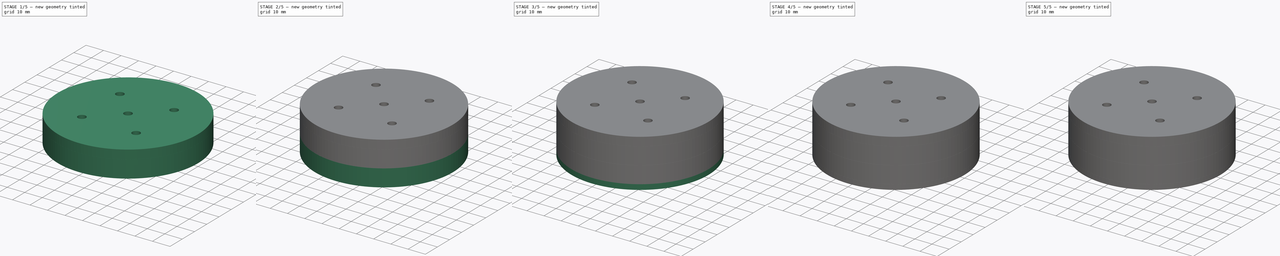
[diagram: build sequence overview — one tinted view per stage of 5, left to right]
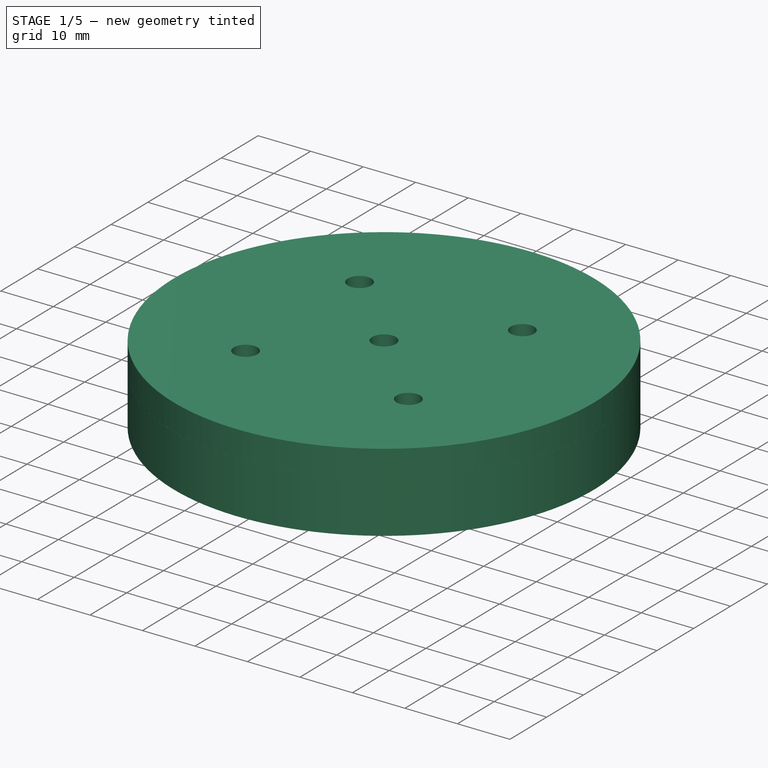
[diagram: stage 1 of 5 — iso view after this stage's code; geometry added in this stage tinted green]
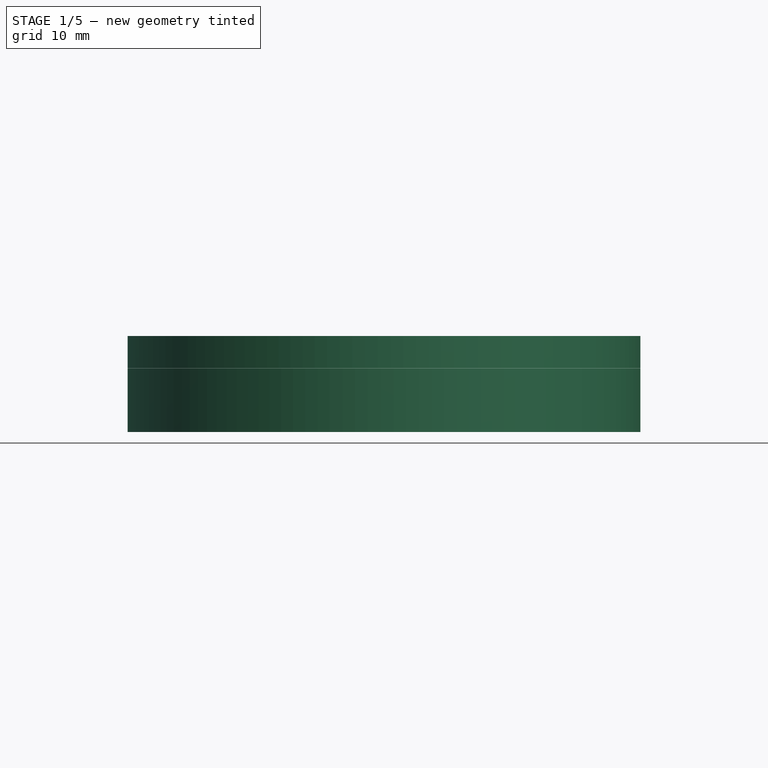
[diagram: stage 1 of 5 — front view after this stage's code; geometry added in this stage tinted green]
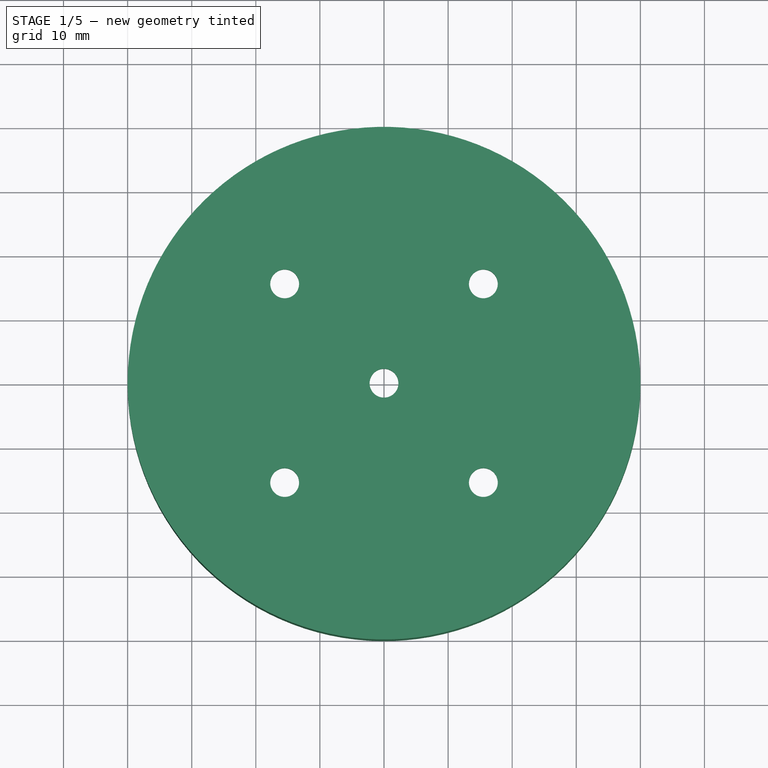
[diagram: stage 1 of 5 — top view after this stage's code; geometry added in this stage tinted green]
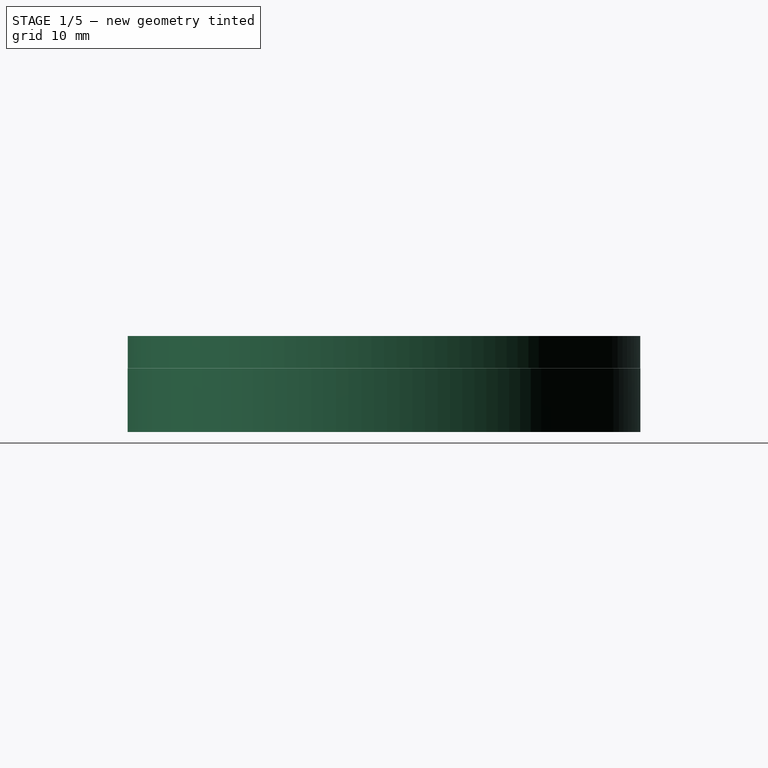
[diagram: stage 1 of 5 — right view after this stage's code; geometry added in this stage tinted green]
FCSTD DOCUMENT  (FreeCAD 0.20R28765 (Git))
Label: gearbox
License: All rights reserved
LicenseURL: http://en.wikipedia.org/wiki/All_rights_reserved
objects: Part::Cylinder×16, Part::Cut×13, Part::FeaturePython×7, App::Link×7, Part::Fuse×4, Sketcher::SketchObject×3, PartDesign::Hole×3, PartDesign::FeatureBase×2, PartDesign::Body×2, Spreadsheet::Sheet×1
note: 53 computed .brp shape members not serialized (recipe doc carries the construction recipe); baked Part::Feature solids carry a one-line shape summary decoded from their .brp
EXTERNAL_REF file=rob-0938.FCStd obj=Body

FEATURE [App::Link] Link  label="S1-Planet001"
  LinkPlacement = pos=(0,-22.4,0) rot=(0,0,1;0.191986rad)
  LinkedObject = -> involutegear002
  Placement = pos=(0,-22.4,0) rot=(0,0,1;0.191986rad)
  expr: .Placement.Base.y = -<<sp>>.M8
FEATURE [App::Link] Link001  label="S1-Planet002"
  LinkPlacement = pos=(22.4,0,0) rot=(0,0,1;0.191986rad)
  LinkedObject = -> involutegear002
  Placement = pos=(22.4,0,0) rot=(0,0,1;0.191986rad)
  expr: .Placement.Base.x = <<sp>>.M8
FEATURE [App::Link] Link002  label="S1-Planet003"
  LinkPlacement = pos=(-22.4,0,0) rot=(0,0,1;0.191986rad)
  LinkedObject = -> involutegear002
  Placement = pos=(-22.4,0,0) rot=(0,0,1;0.191986rad)
  expr: .Placement.Base.x = -<<sp>>.M8
FEATURE [Part::Cylinder] Cylinder001
  Angle = 360
  AttacherType = Attacher::AttachEngine3D
  FirstAngle = 0
  Height = 9.98
  Placement = pos=(0,0,0.01) rot=(0,0,1;0rad)
  Radius = 40
  SecondAngle = 0
FEATURE [Part::FeaturePython] involutegear003  label="S1-Ring003"  # WARN: FeaturePython — macro-defined, semantics opaque (R4)
  AttacherType = Attacher::AttachEngine3D
  backlash = 0.01
  beta = 15
  clearance = -0.4
  da = 67.4489
  df = 63.2178
  double_helix = true
  dw = 64.7111
  head = 0.1
  height = 10
  module = 1.24444
  numpoints = 6
  pressure_angle = 20
  properties_from_tool = false
  reversed_backlash = true
  shift = 0
  simple = false
  teeth = 52
  transverse_pitch = 3.90954
  undercut = false
  version = 0.0.3
  expr: module = <<sp>>.H9
  expr: teeth = <<sp>>.D9
FEATURE [Part::Cut] Cut001  label="S2-Ring"
  Base = -> Cylinder001
  Placement = pos=(0,0,10) rot=(0,0,1;0.061087rad)
  Tool = -> involutegear003
FEATURE [PartDesign::Body] Body  label="Bottom Cap001"
  BaseFeature = -> Cut002
  Group = -> [BaseFeature,Sketch,Hole]
  Origin = -> Origin
  Placement = pos=(0,0,-3) rot=(0,0,1;0rad)
  Tip = -> Hole
FEATURE [Part::FeaturePython] Tube  # WARN: FeaturePython — macro-defined, semantics opaque (R4)
  AttacherType = Attacher::AttachEngine3D
  Height = 2
  InnerRadius = 34
  OuterRadius = 40
  Placement = pos=(0,0,20) rot=(0,0,1;0rad)
FEATURE [Part::Cylinder] Cylinder004
  Angle = 360
  AttacherType = Attacher::AttachEngine3D
  FirstAngle = 0
  Height = 3
  Placement = pos=(0,0,22) rot=(0,0,1;0rad)
  Radius = 40
  SecondAngle = 0
FEATURE [PartDesign::FeatureBase] BaseFeature001
  BaseFeature = -> Cylinder004
FEATURE [Sketcher::SketchObject] Sketch001
  AttachmentOffset = pos=(0,0,3) rot=(0,0,1;0rad)
  FullyConstrained = true
  MapMode = 5
  Placement = pos=(0,0,3) rot=(0,0,1;0rad)
  Support = -> [XY_Plane001]
  sketch-geometry (9):
    g0: LineSegment StartX=-15.5 StartY=15.5 StartZ=0 EndX=-15.5 EndY=-15.5 EndZ=0
    g1: LineSegment StartX=-15.5 StartY=-15.5 StartZ=0 EndX=15.5 EndY=-15.5 EndZ=0
    g2: LineSegment StartX=15.5 StartY=-15.5 StartZ=0 EndX=15.5 EndY=15.5 EndZ=0
    g3: LineSegment StartX=15.5 StartY=15.5 StartZ=0 EndX=-15.5 EndY=15.5 EndZ=0
    g4: GeomPoint X=1e-16 Y=0 Z=0
    g5: Circle CenterX=-15.5 CenterY=15.5 CenterZ=0 NormalX=0 NormalY=0 NormalZ=1 AngleXU=0 Radius=1.75
    g6: Circle CenterX=15.5 CenterY=15.5 CenterZ=0 NormalX=0 NormalY=0 NormalZ=1 AngleXU=0 Radius=1.75
    g7: Circle CenterX=-15.5 CenterY=-15.5 CenterZ=0 NormalX=0 NormalY=0 NormalZ=1 AngleXU=0 Radius=1.75
    g8: Circle CenterX=15.5 CenterY=-15.5 CenterZ=0 NormalX=0 NormalY=0 NormalZ=1 AngleXU=0 Radius=1.75
  constraints (20):
    c: Coincident(g0,g1)
    c: Coincident(g1,g2)
    c: Coincident(g2,g3)
    c: Coincident(g3,g0)
    c: Horizontal(g1)
    c: Horizontal(g3)
    c: Vertical(g0)
    c: Vertical(g2)
    c: Symmetric(g1,g0,g4)
    c: Coincident(g4,g-1)
    c: Equal(g2,g3)
    c: Distance(g3) = 31
    c: Coincident(g5,g0)
    c: Coincident(g6,g2)
    c: Coincident(g7,g0)
    c: Coincident(g8,g1)
    c: Equal(g5,g6)
    c: Equal(g6,g7)
    c: Equal(g7,g8)
    c: Diameter(g6) = 3.5
FEATURE [PartDesign::Hole] Hole001
  BaseFeature = -> BaseFeature001
  CustomThreadClearance = 0
  Depth = 25
  DepthType = 0
  Diameter = 4.5
  DrillForDepth = false
  DrillPoint = 0
  DrillPointAngle = 118
  HoleCutCountersinkAngle = 90
  HoleCutCustomValues = false
  HoleCutDepth = 0
  HoleCutDiameter = 6.1
  HoleCutType = 0
  ModelThread = false
  Profile = -> Sketch001
  Tapered = false
  TaperedAngle = 90
  ThreadClass = 0
  ThreadDepth = 25
  ThreadDepthType = 0
  ThreadDirection = 0
  ThreadFit = 0
  ThreadSize = 11
  ThreadType = 1
  Threaded = false
  UseCustomThreadClearance = false
FEATURE [Sketcher::SketchObject] Sketch002
  FullyConstrained = true
  MapMode = 5
  Placement = pos=(0,0,3) rot=(0,0,1;0rad)
  Support = -> [Hole001]
  sketch-geometry (1):
    g0: Circle CenterX=0 CenterY=0 CenterZ=0 NormalX=0 NormalY=0 NormalZ=1 AngleXU=0 Radius=2.5
  constraints (2):
    c: Coincident(g0,g-1)
    c: Diameter(g0) = 5
FEATURE [PartDesign::Hole] Hole002
  BaseFeature = -> Hole001
  CustomThreadClearance = 0
  Depth = 25
  DepthType = 0
  Diameter = 4.5
  DrillForDepth = false
  DrillPoint = 1
  DrillPointAngle = 118
  HoleCutCountersinkAngle = 90
  HoleCutCustomValues = false
  HoleCutDepth = 0
  HoleCutDiameter = 6.1
  HoleCutType = 0
  ModelThread = false
  Profile = -> Sketch002
  Tapered = false
  TaperedAngle = 90
  ThreadClass = 0
  ThreadDepth = 25
  ThreadDepthType = 0
  ThreadDirection = 0
  ThreadFit = 0
  ThreadSize = 11
  ThreadType = 1
  Threaded = false
  UseCustomThreadClearance = false
FEATURE [PartDesign::Body] Body001
  BaseFeature = -> Cylinder004
  Group = -> [BaseFeature001,Sketch001,Hole001,Sketch002,Hole002]
  Origin = -> Origin001
  Placement = pos=(0,0,22) rot=(0,0,1;0rad)
  Tip = -> Hole002
FEATURE [Part::Fuse] Fusion  label="Top cap"
  Base = -> Tube
  Tool = -> Body001
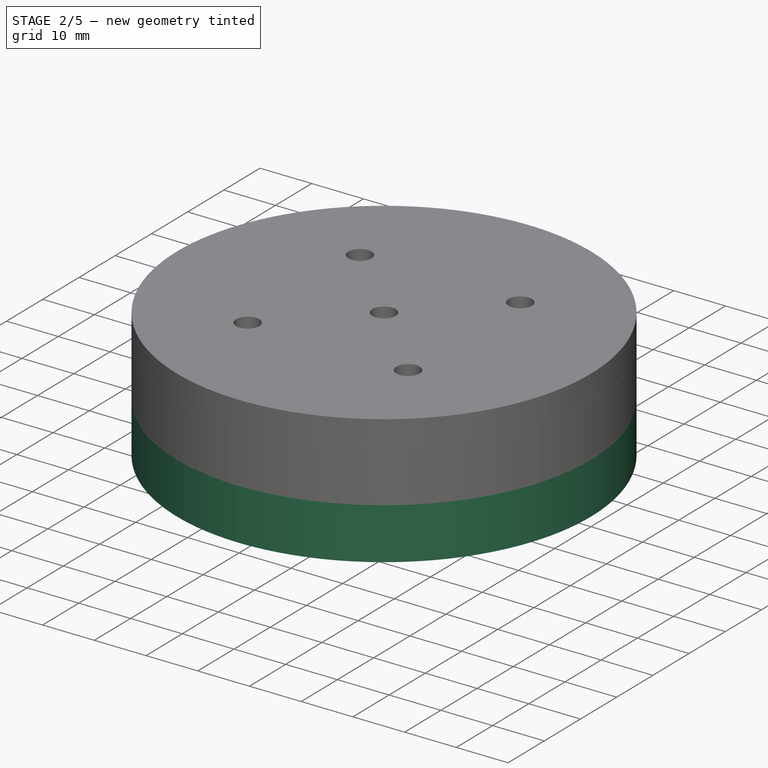
[diagram: stage 2 of 5 — iso view after this stage's code; geometry added in this stage tinted green]
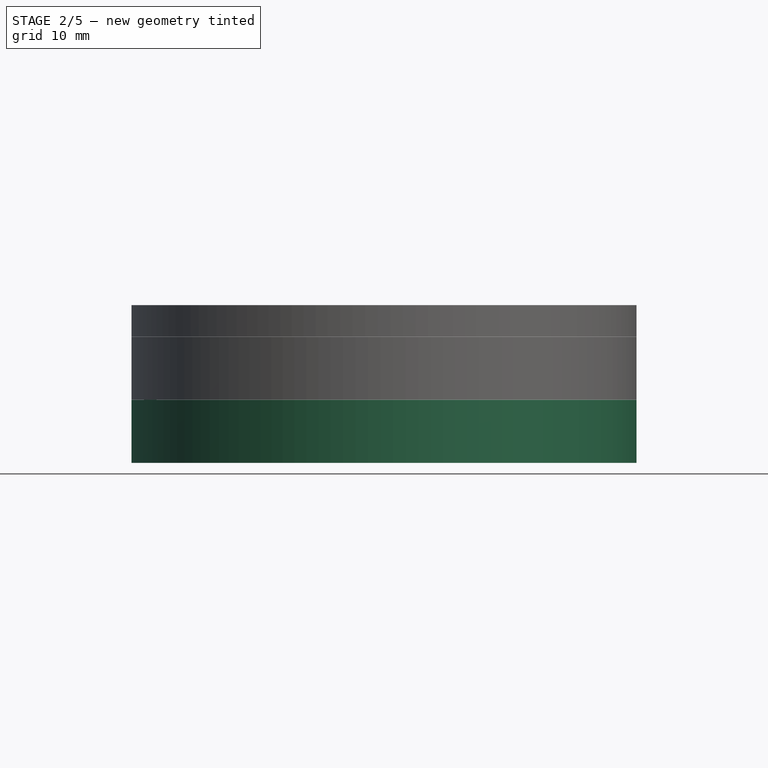
[diagram: stage 2 of 5 — front view after this stage's code; geometry added in this stage tinted green]
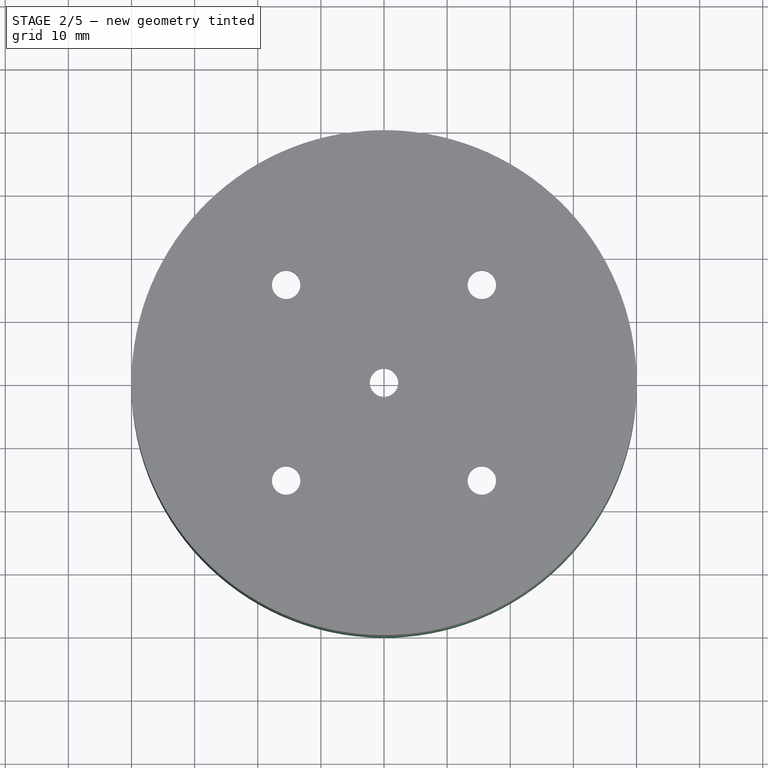
[diagram: stage 2 of 5 — top view after this stage's code; geometry added in this stage tinted green]
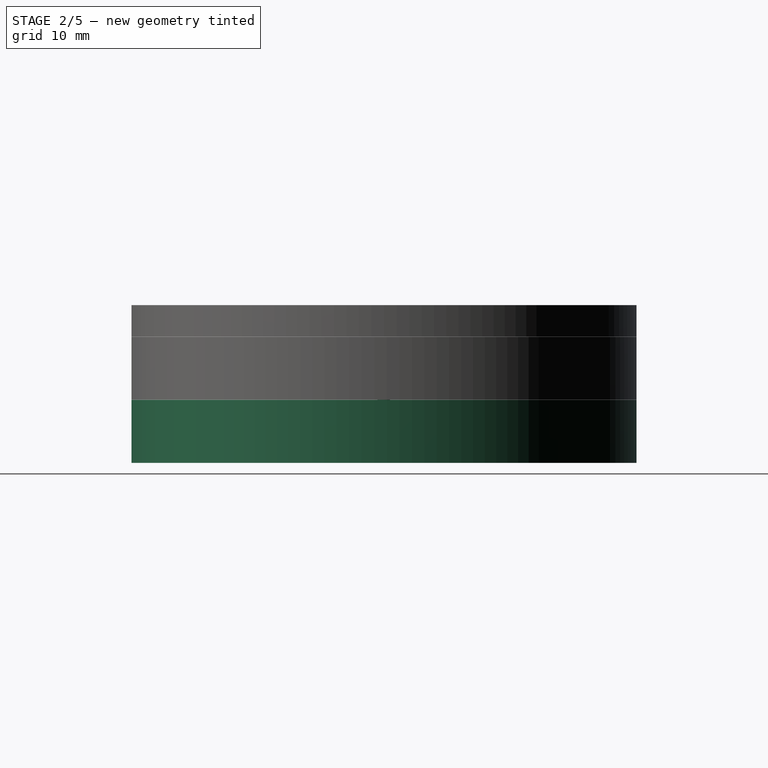
[diagram: stage 2 of 5 — right view after this stage's code; geometry added in this stage tinted green]
FEATURE [Part::FeaturePython] involutegear  label="S1-Ring"  # WARN: FeaturePython — macro-defined, semantics opaque (R4)
  AttacherType = Attacher::AttachEngine3D
  backlash = 0.02
  beta = 15
  clearance = -0.35
  da = 70.28
  df = 65.38
  double_helix = true
  dw = 67.2
  head = 0.1
  height = 10
  module = 1.4
  numpoints = 6
  pressure_angle = 20
  properties_from_tool = false
  reversed_backlash = true
  shift = 0
  simple = false
  teeth = 48
  transverse_pitch = 4.39823
  undercut = false
  version = 0.0.3
  expr: module = <<sp>>.H8
  expr: teeth = <<sp>>.D8
FEATURE [Part::Cylinder] Cylinder
  Angle = 360
  AttacherType = Attacher::AttachEngine3D
  FirstAngle = 0
  Height = 9.98
  Placement = pos=(0,0,0.01) rot=(0,0,1;0rad)
  Radius = 40
  SecondAngle = 0
FEATURE [Part::Cut] Cut  label="S1-Ring004"
  Base = -> Cylinder
  Placement = pos=(0,0,0) rot=(0,0,1;0.061087rad)
  Tool = -> involutegear
FEATURE [Part::Cylinder] Cylinder013
  Angle = 360
  AttacherType = Attacher::AttachEngine3D
  FirstAngle = 0
  Height = 2
  Placement = pos=(37,0,9) rot=(0,0,1;0rad)
  Radius = 1
  SecondAngle = 0
FEATURE [Part::Cylinder] Cylinder014
  Angle = 360
  AttacherType = Attacher::AttachEngine3D
  FirstAngle = 0
  Height = 2
  Placement = pos=(-37,0,9) rot=(0,0,1;0rad)
  Radius = 1
  SecondAngle = 0
FEATURE [Part::Cylinder] Cylinder016
  Angle = 360
  AttacherType = Attacher::AttachEngine3D
  FirstAngle = 0
  Height = 2
  Placement = pos=(0,-37,9) rot=(0,0,1;0rad)
  Radius = 1
  SecondAngle = 0
FEATURE [Part::Cut] Cut009
  Base = -> Cut
  Tool = -> Cylinder013
FEATURE [Part::Cut] Cut010
  Base = -> Cut009
  Tool = -> Cylinder016
FEATURE [Part::Fuse] Fusion003  label="S2-Ring001"
  Base = -> Cut001
  Tool = -> Fusion
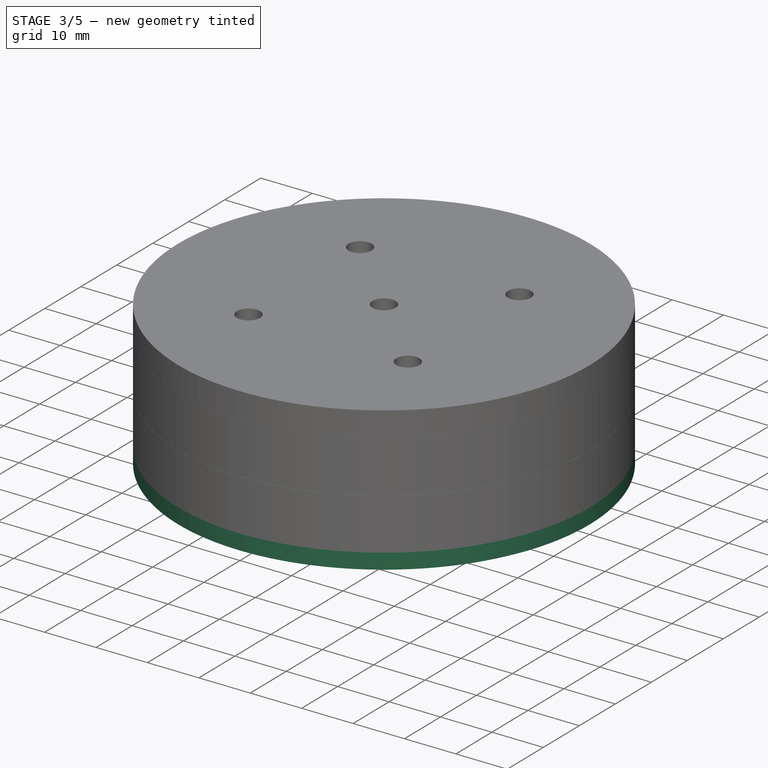
[diagram: stage 3 of 5 — iso view after this stage's code; geometry added in this stage tinted green]
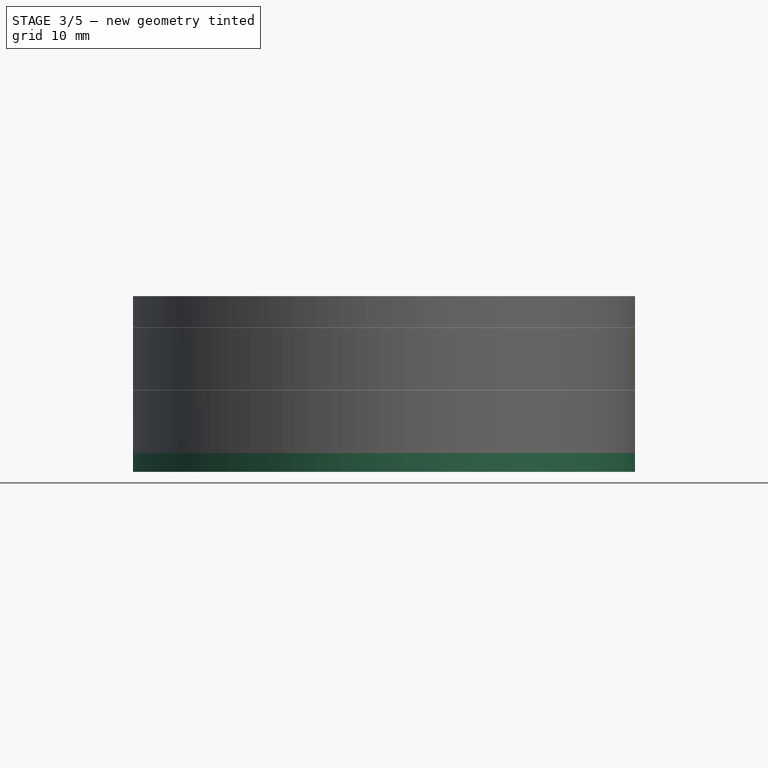
[diagram: stage 3 of 5 — front view after this stage's code; geometry added in this stage tinted green]
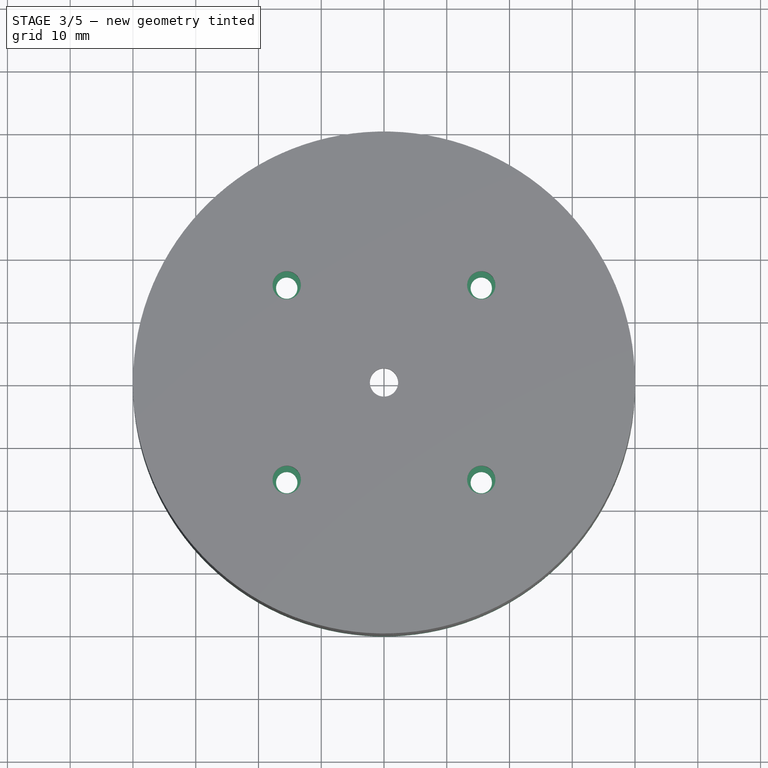
[diagram: stage 3 of 5 — top view after this stage's code; geometry added in this stage tinted green]
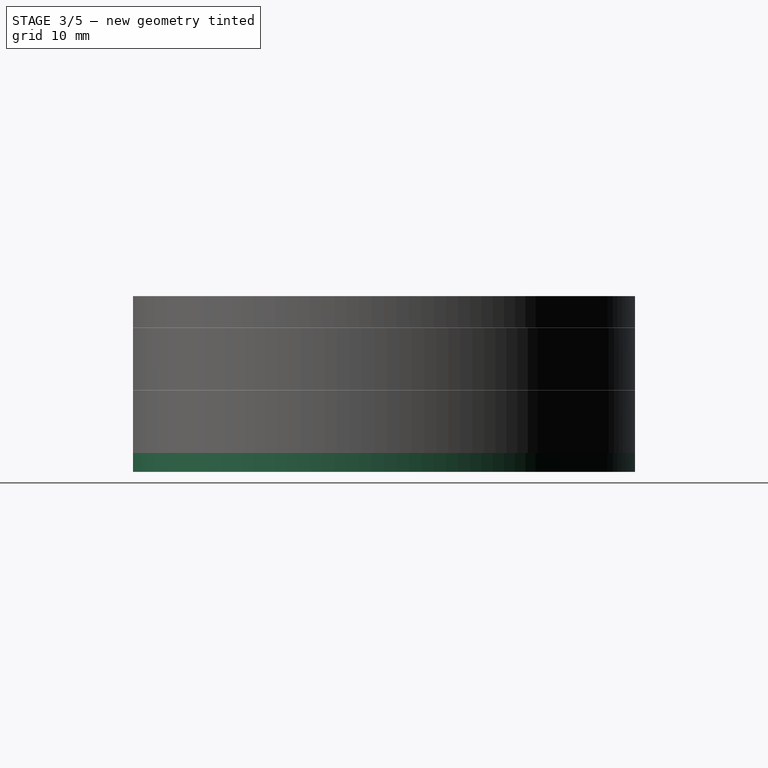
[diagram: stage 3 of 5 — right view after this stage's code; geometry added in this stage tinted green]
FEATURE [App::Link] Link003  label="S2-Planet001"
  LinkPlacement = pos=(0,-22.4,10) rot=(0,0,1;0.191986rad)
  LinkedObject = -> involutegear005
  Placement = pos=(0,-22.4,10) rot=(0,0,1;0.191986rad)
  expr: .Placement.Base.y = -<<sp>>.M9
FEATURE [App::Link] Link004  label="S2-Planet002"
  LinkPlacement = pos=(22.4,0,10) rot=(0,0,1;0.191986rad)
  LinkedObject = -> involutegear005
  Placement = pos=(22.4,0,10) rot=(0,0,1;0.191986rad)
  expr: .Placement.Base.x = <<sp>>.M9
FEATURE [App::Link] Link005  label="S2-Planet003"
  LinkPlacement = pos=(-22.4,0,10) rot=(0,0,1;0.191986rad)
  LinkedObject = -> involutegear005
  Placement = pos=(-22.4,0,10) rot=(0,0,1;0.191986rad)
  expr: .Placement.Base.x = -<<sp>>.M9
FEATURE [App::Link] Link006  label="Motor"
  LinkPlacement = pos=(0,0,-39.5) rot=(0,0,1;0rad)
  LinkedObject = -> <external rob-0938.FCStd>#Body
  Placement = pos=(0,0,-39.5) rot=(0,0,1;0rad)
FEATURE [Part::Cylinder] Cylinder002  label="Bottom Cap"
  Angle = 360
  AttacherType = Attacher::AttachEngine3D
  FirstAngle = 0
  Height = 3
  Radius = 40
  SecondAngle = 0
FEATURE [Part::Cylinder] Cylinder003  label="Bottom Cap Hole"
  Angle = 360
  AttacherType = Attacher::AttachEngine3D
  FirstAngle = 0
  Height = 6
  Radius = 3
  SecondAngle = 0
FEATURE [Part::Cut] Cut002  label="Bottom-Cap"
  Base = -> Cylinder002
  Tool = -> Cylinder003
FEATURE [Sketcher::SketchObject] Sketch
  AttachmentOffset = pos=(0,0,3) rot=(0,0,1;0rad)
  FullyConstrained = true
  MapMode = 5
  Placement = pos=(0,0,3) rot=(0,0,1;0rad)
  Support = -> [XY_Plane]
  sketch-geometry (9):
    g0: LineSegment StartX=-15.5 StartY=15.5 StartZ=0 EndX=-15.5 EndY=-15.5 EndZ=0
    g1: LineSegment StartX=-15.5 StartY=-15.5 StartZ=0 EndX=15.5 EndY=-15.5 EndZ=0
    g2: LineSegment StartX=15.5 StartY=-15.5 StartZ=0 EndX=15.5 EndY=15.5 EndZ=0
    g3: LineSegment StartX=15.5 StartY=15.5 StartZ=0 EndX=-15.5 EndY=15.5 EndZ=0
    g4: GeomPoint X=1e-16 Y=0 Z=0
    g5: Circle CenterX=-15.5 CenterY=15.5 CenterZ=0 NormalX=0 NormalY=0 NormalZ=1 AngleXU=0 Radius=1.75
    g6: Circle CenterX=15.5 CenterY=15.5 CenterZ=0 NormalX=0 NormalY=0 NormalZ=1 AngleXU=0 Radius=1.75
    g7: Circle CenterX=-15.5 CenterY=-15.5 CenterZ=0 NormalX=0 NormalY=0 NormalZ=1 AngleXU=0 Radius=1.75
    g8: Circle CenterX=15.5 CenterY=-15.5 CenterZ=0 NormalX=0 NormalY=0 NormalZ=1 AngleXU=0 Radius=1.75
  constraints (20):
    c: Coincident(g0,g1)
    c: Coincident(g1,g2)
    c: Coincident(g2,g3)
    c: Coincident(g3,g0)
    c: Horizontal(g1)
    c: Horizontal(g3)
    c: Vertical(g0)
    c: Vertical(g2)
    c: Symmetric(g1,g0,g4)
    c: Coincident(g4,g-1)
    c: Equal(g2,g3)
    c: Distance(g3) = 31
    c: Coincident(g5,g0)
    c: Coincident(g6,g2)
    c: Coincident(g7,g0)
    c: Coincident(g8,g1)
    c: Equal(g5,g6)
    c: Equal(g6,g7)
    c: Equal(g7,g8)
    c: Diameter(g6) = 3.5
FEATURE [PartDesign::FeatureBase] BaseFeature
  BaseFeature = -> Cut002
FEATURE [PartDesign::Hole] Hole
  BaseFeature = -> BaseFeature
  CustomThreadClearance = 0
  Depth = 25
  DepthType = 0
  Diameter = 3.4
  DrillForDepth = false
  DrillPoint = 1
  DrillPointAngle = 118
  HoleCutCountersinkAngle = 90
  HoleCutCustomValues = false
  HoleCutDepth = 1.5
  HoleCutDiameter = 6.3
  HoleCutType = 1
  ModelThread = false
  Profile = -> Sketch
  Tapered = false
  TaperedAngle = 90
  ThreadClass = 0
  ThreadDepth = 25
  ThreadDepthType = 0
  ThreadDirection = 0
  ThreadFit = 0
  ThreadSize = 9
  ThreadType = 1
  Threaded = false
  UseCustomThreadClearance = false
FEATURE [Part::Cylinder] Cylinder015
  Angle = 360
  AttacherType = Attacher::AttachEngine3D
  FirstAngle = 0
  Height = 2
  Placement = pos=(0,37,9) rot=(0,0,1;0rad)
  Radius = 1
  SecondAngle = 0
FEATURE [Part::Cut] Cut011
  Base = -> Cut010
  Tool = -> Cylinder014
FEATURE [Part::Cut] Cut012
  Base = -> Cut011
  Tool = -> Cylinder015
FEATURE [Part::Fuse] Fusion002  label="S1-Ring005"
  Base = -> Body
  Tool = -> Cut012
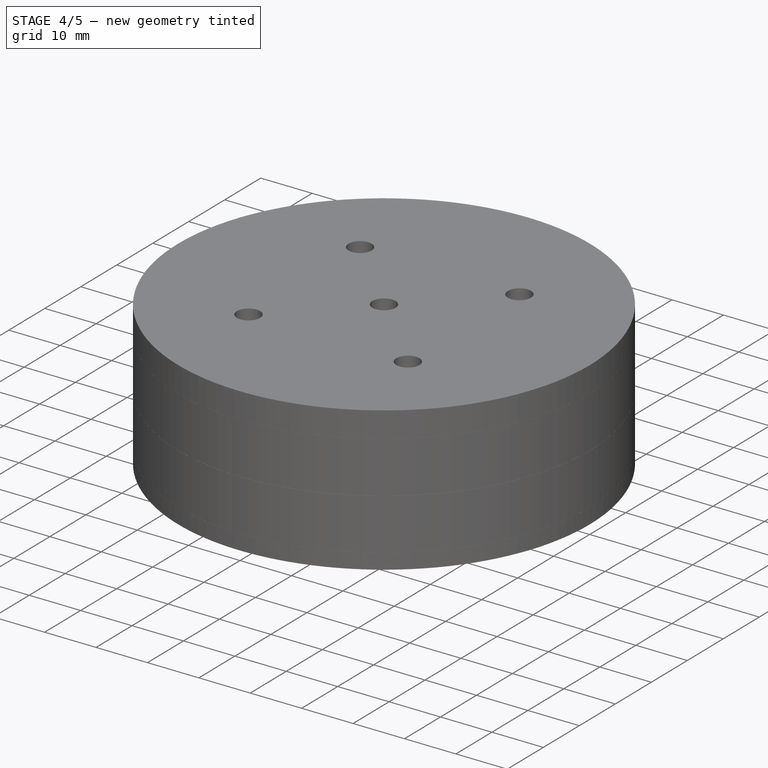
[diagram: stage 4 of 5 — iso view after this stage's code; geometry added in this stage tinted green]
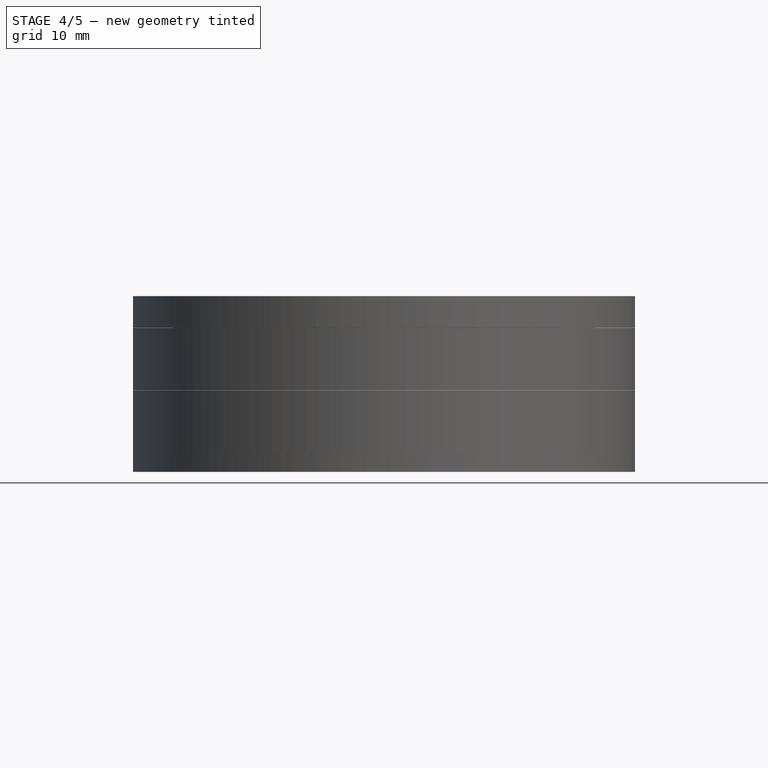
[diagram: stage 4 of 5 — front view after this stage's code; geometry added in this stage tinted green]
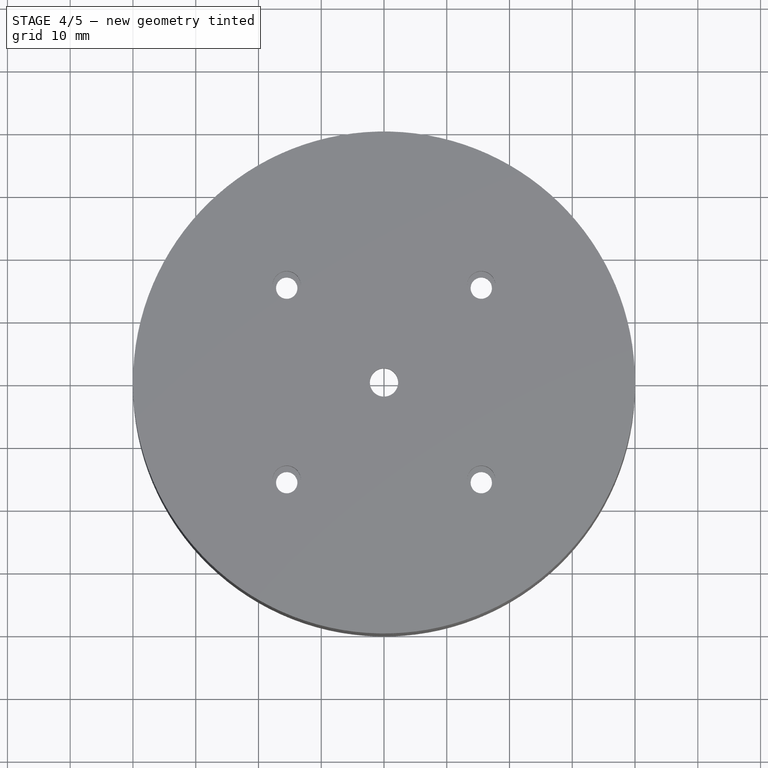
[diagram: stage 4 of 5 — top view after this stage's code; geometry added in this stage tinted green]
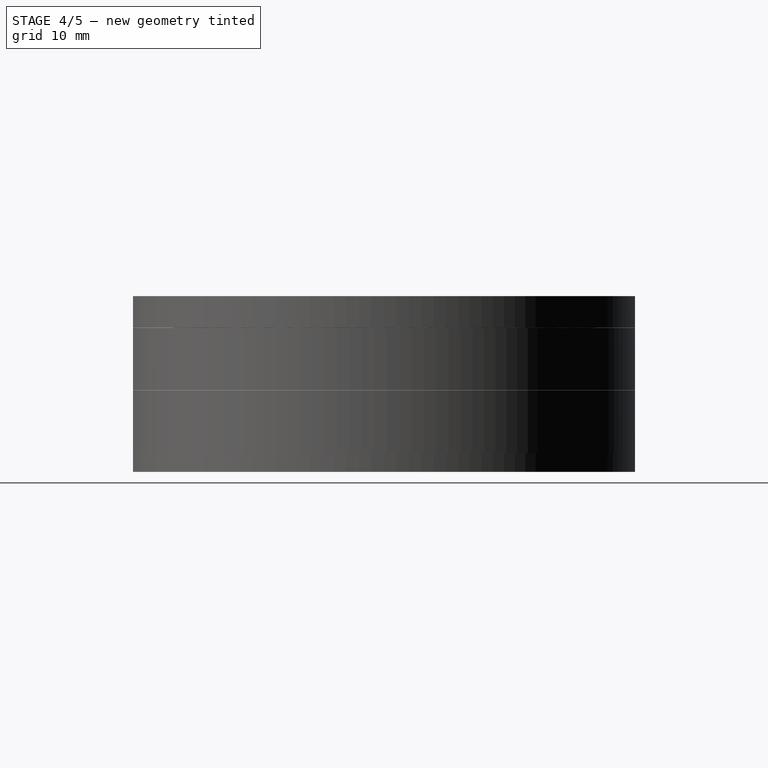
[diagram: stage 4 of 5 — right view after this stage's code; geometry added in this stage tinted green]
FEATURE [Part::FeaturePython] involutegear005  label="S2-Planet"  # WARN: FeaturePython — macro-defined, semantics opaque (R4)
  AttacherType = Attacher::AttachEngine3D
  Placement = pos=(0,22.4,10) rot=(0,0,1;0.191986rad)
  backlash = 0.01
  beta = 15
  clearance = 0.25
  da = 22.4
  df = 16.8
  double_helix = true
  dw = 19.9111
  head = 0
  height = 10
  module = 1.24444
  numpoints = 6
  pressure_angle = 20
  properties_from_tool = false
  reversed_backlash = false
  shift = 0
  simple = false
  teeth = 16
  transverse_pitch = 3.90954
  undercut = false
  version = 0.0.3
  expr: .Placement.Base.y = <<sp>>.M9
  expr: module = <<sp>>.H9
  expr: teeth = <<sp>>.F9
FEATURE [Part::Cylinder] Cylinder009
  Angle = 360
  AttacherType = Attacher::AttachEngine3D
  FirstAngle = 0
  Height = 2
  Placement = pos=(28,0,19) rot=(0,0,1;0rad)
  Radius = 1
  SecondAngle = 0
FEATURE [Part::Cylinder] Cylinder010
  Angle = 360
  AttacherType = Attacher::AttachEngine3D
  FirstAngle = 0
  Height = 2
  Placement = pos=(0,-28,19) rot=(0,0,1;0rad)
  Radius = 1
  SecondAngle = 0
FEATURE [Part::Cylinder] Cylinder011
  Angle = 360
  AttacherType = Attacher::AttachEngine3D
  FirstAngle = 0
  Height = 2
  Placement = pos=(0,28,19) rot=(0,0,1;0rad)
  Radius = 1
  SecondAngle = 0
FEATURE [Part::Cylinder] Cylinder012
  Angle = 360
  AttacherType = Attacher::AttachEngine3D
  FirstAngle = 0
  Height = 2
  Placement = pos=(-28,0,19) rot=(0,0,1;0rad)
  Radius = 1
  SecondAngle = 0
FEATURE [Part::Cut] Cut005  label="S2-Planet005"
  Base = -> Link004
  Placement = pos=(0,0,0) rot=(0,0,1;0.001745rad)
  Tool = -> Cylinder009
FEATURE [Part::Cut] Cut006  label="S2-Planet004"
  Base = -> Link003
  Placement = pos=(0,0,0) rot=(0,0,1;0.001745rad)
  Tool = -> Cylinder010
FEATURE [Part::Cut] Cut007  label="S2-Planet006"
  Base = -> Link005
  Placement = pos=(0,0,0) rot=(0,0,1;0.001745rad)
  Tool = -> Cylinder012
FEATURE [Part::Cut] Cut008  label="S2-Planet007"
  Base = -> involutegear005
  Placement = pos=(0,0,0) rot=(0,0,1;0.001745rad)
  Tool = -> Cylinder011
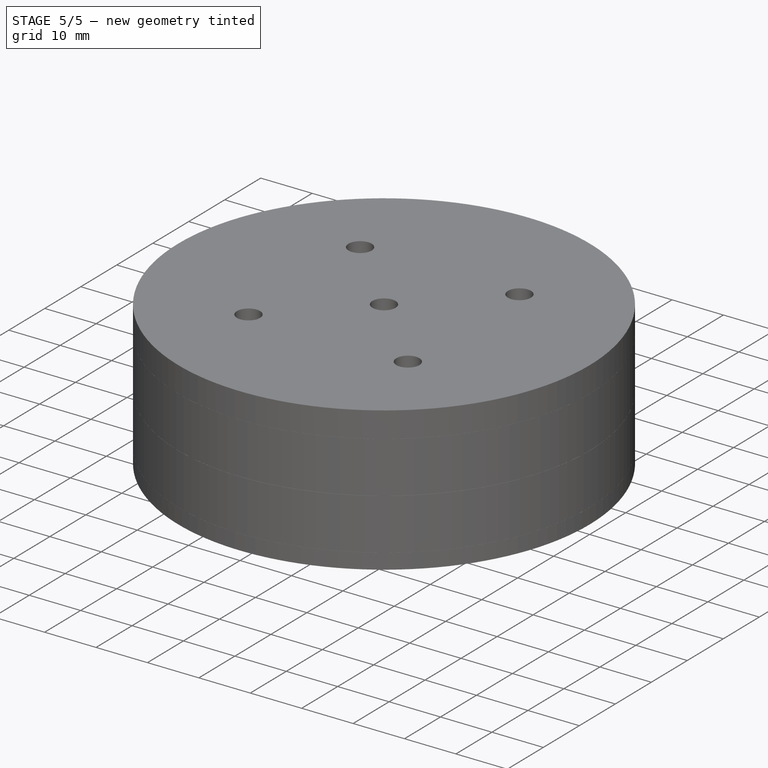
[diagram: stage 5 of 5 — iso view after this stage's code; geometry added in this stage tinted green]
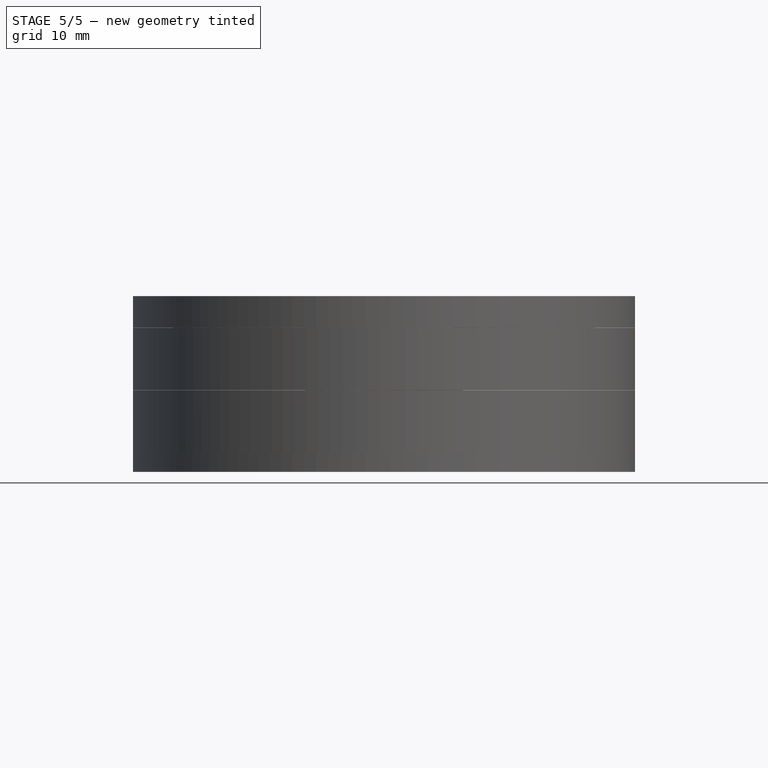
[diagram: stage 5 of 5 — front view after this stage's code; geometry added in this stage tinted green]
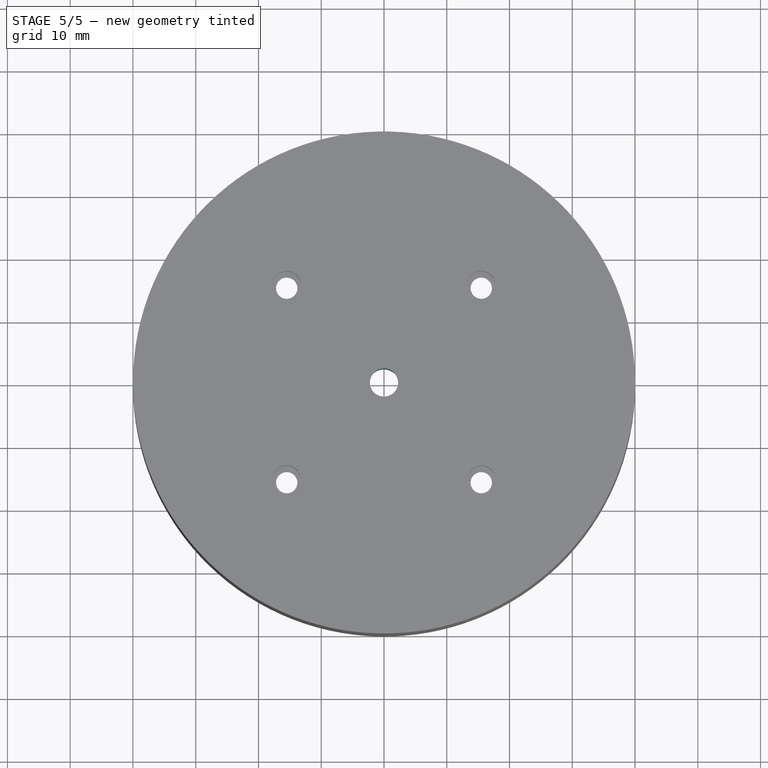
[diagram: stage 5 of 5 — top view after this stage's code; geometry added in this stage tinted green]
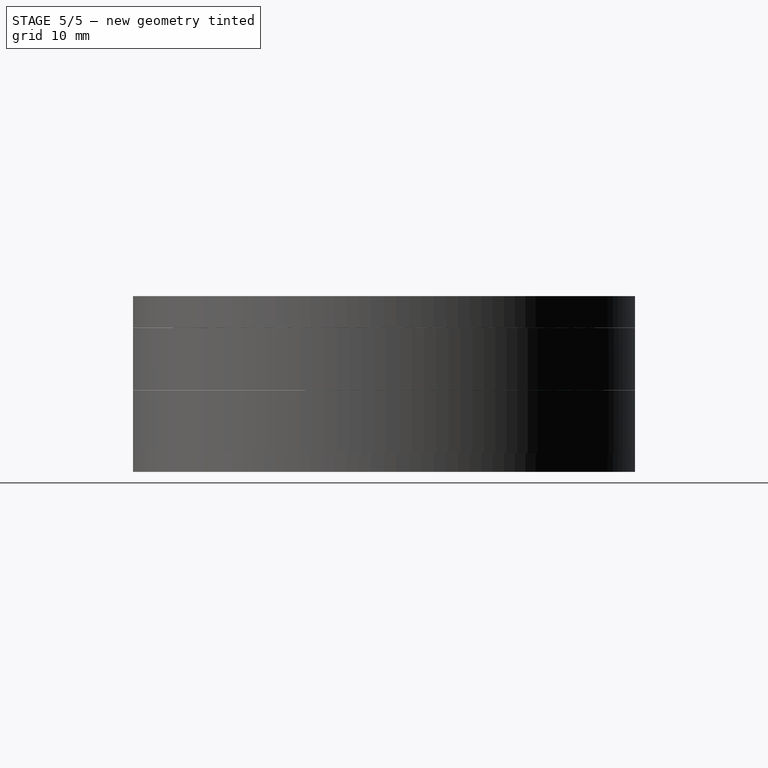
[diagram: stage 5 of 5 — right view after this stage's code; geometry added in this stage tinted green]
FEATURE [Spreadsheet::Sheet] Spreadsheet  label="sp"
  cells = D6=Teeth; I6=Gear diameter; B7=Ratio; D7=Ring; E7=Sun; F7=Planet; H7=Module; I7=Ring; J7=Sun; K7=Planet; M7=Dist to planet; B8==1 / ((D9 - D8 / F8 * F9) / D9 * E8 / (D8 + E8)); D8==E8 + F8 * 2; E8=16; F8=16; H8=1.4; I8==D8 * H8; J8==E8 * H8; K8==F8 * H8; M8==(J8 + K8) / 2; D9==E9 + F9 * 2; E9=20; F9=16; H9==(E8 + F8) / (E9 + F9) * H8; I9==D9 * H9; J9==E9 * H9; K9==F9 * H9; M9==(J9 + K9) / 2; A11=These must be 0; B11==(D8 + D9) % 4; B12==(D9 + E9) % 4
FEATURE [Part::FeaturePython] involutegear001  label="S1-Sun"  # WARN: FeaturePython — macro-defined, semantics opaque (R4)
  AttacherType = Attacher::AttachEngine3D
  backlash = 0.01
  beta = -15
  clearance = 0.25
  da = 25.2
  df = 18.9
  double_helix = true
  dw = 22.4
  head = 0
  height = 10
  module = 1.4
  numpoints = 6
  pressure_angle = 20
  properties_from_tool = false
  reversed_backlash = false
  shift = 0
  simple = false
  teeth = 16
  transverse_pitch = 4.39823
  undercut = false
  version = 0.0.3
  expr: module = <<sp>>.H8
  expr: teeth = <<sp>>.E8
FEATURE [Part::FeaturePython] involutegear002  label="S1-Planet"  # WARN: FeaturePython — macro-defined, semantics opaque (R4)
  AttacherType = Attacher::AttachEngine3D
  Placement = pos=(0,22.4,0) rot=(0,0,1;0.191986rad)
  backlash = 0.01
  beta = 15
  clearance = 0.25
  da = 25.2
  df = 18.9
  double_helix = true
  dw = 22.4
  head = 0
  height = 10
  module = 1.4
  numpoints = 6
  pressure_angle = 20
  properties_from_tool = false
  reversed_backlash = false
  shift = 0
  simple = false
  teeth = 16
  transverse_pitch = 4.39823
  undercut = false
  version = 0.0.3
  expr: .Placement.Base.y = <<sp>>.M8
  expr: module = <<sp>>.H8
  expr: teeth = <<sp>>.F8
FEATURE [Part::FeaturePython] involutegear004  label="S2-Sun"  # WARN: FeaturePython — macro-defined, semantics opaque (R4)
  AttacherType = Attacher::AttachEngine3D
  Placement = pos=(0,0,10) rot=(0,0,1;0rad)
  backlash = 0.01
  beta = -15
  clearance = 0.25
  da = 27.3778
  df = 21.7778
  double_helix = true
  dw = 24.8889
  head = 0
  height = 10
  module = 1.24444
  numpoints = 6
  pressure_angle = 20
  properties_from_tool = false
  reversed_backlash = false
  shift = 0
  simple = false
  teeth = 20
  transverse_pitch = 3.90954
  undercut = false
  version = 0.0.3
  expr: module = <<sp>>.H9
  expr: teeth = <<sp>>.E9
FEATURE [Part::Cylinder] Cylinder005
  Angle = 360
  AttacherType = Attacher::AttachEngine3D
  FirstAngle = 0
  Height = 20
  Radius = 2.5
  SecondAngle = 0
FEATURE [Part::Cylinder] Cylinder006
  Angle = 360
  AttacherType = Attacher::AttachEngine3D
  FirstAngle = 0
  Height = 20
  Radius = 6
  SecondAngle = 0
FEATURE [Part::Fuse] Fusion001
  Base = -> involutegear001
  Tool = -> Cylinder006
FEATURE [Part::Cut] Cut003  label="S1-Sun001"
  Base = -> Fusion001
  Tool = -> Cylinder005
FEATURE [Part::Cylinder] Cylinder007
  Angle = 360
  AttacherType = Attacher::AttachEngine3D
  FirstAngle = 0
  Height = 20
  Radius = 6.15
  SecondAngle = 0
FEATURE [Part::Cut] Cut004  label="S2-Sun001"
  Base = -> involutegear004
  Tool = -> Cylinder007
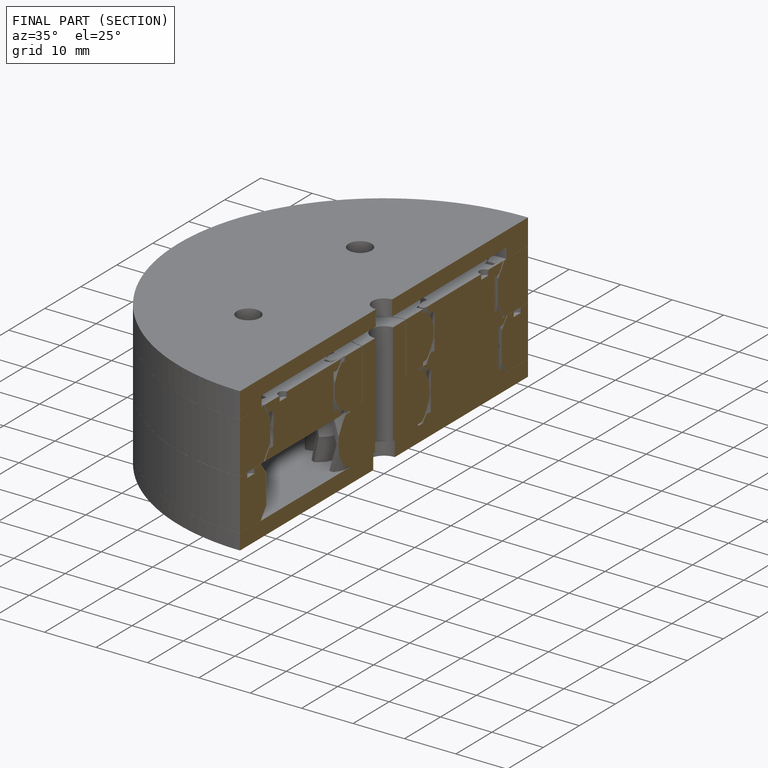
[diagram: finished part — half-section view (interior)]
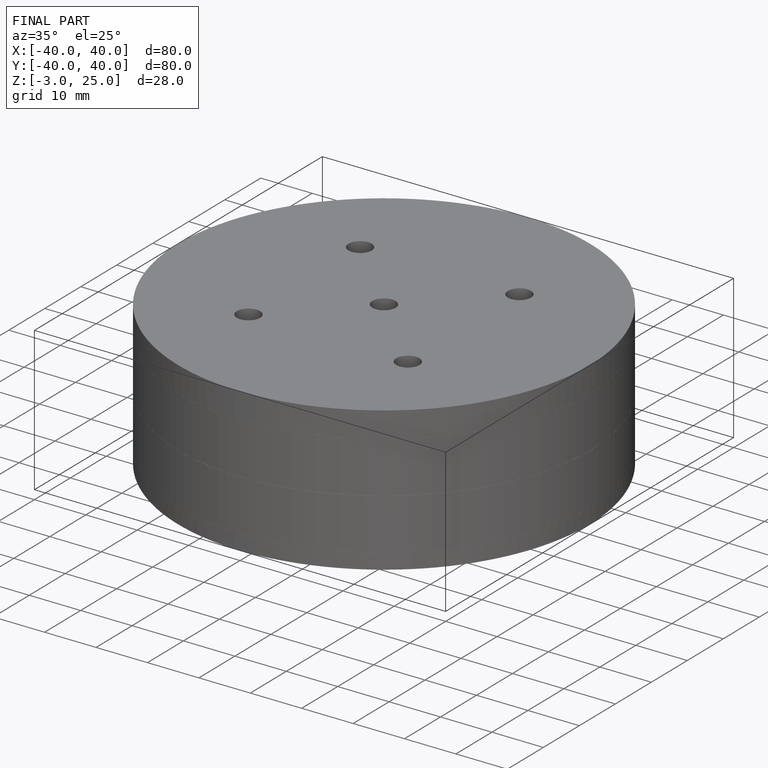
[diagram: finished part — iso view with bounding-box wireframe]
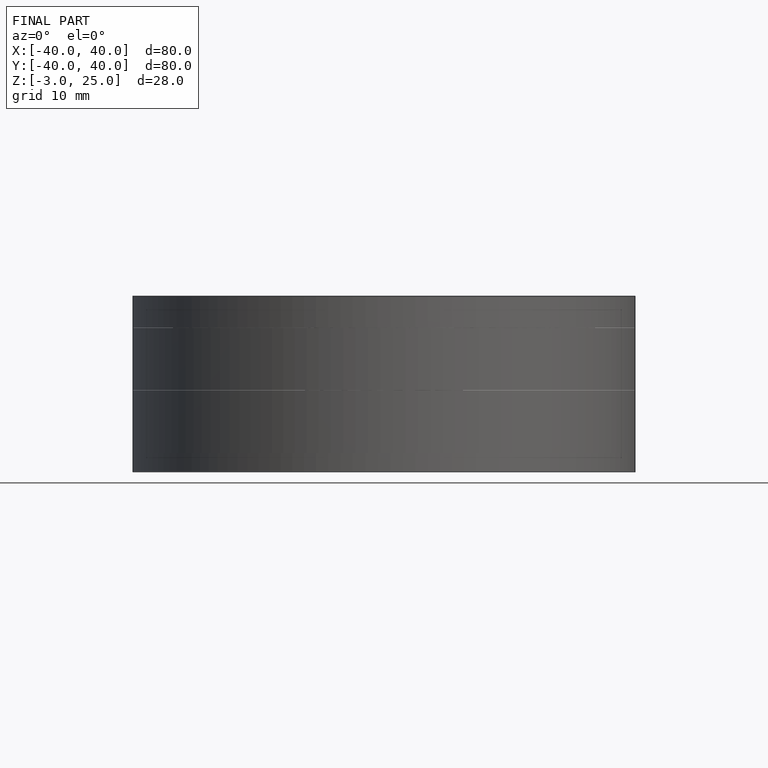
[diagram: finished part — front view with bounding-box wireframe]
